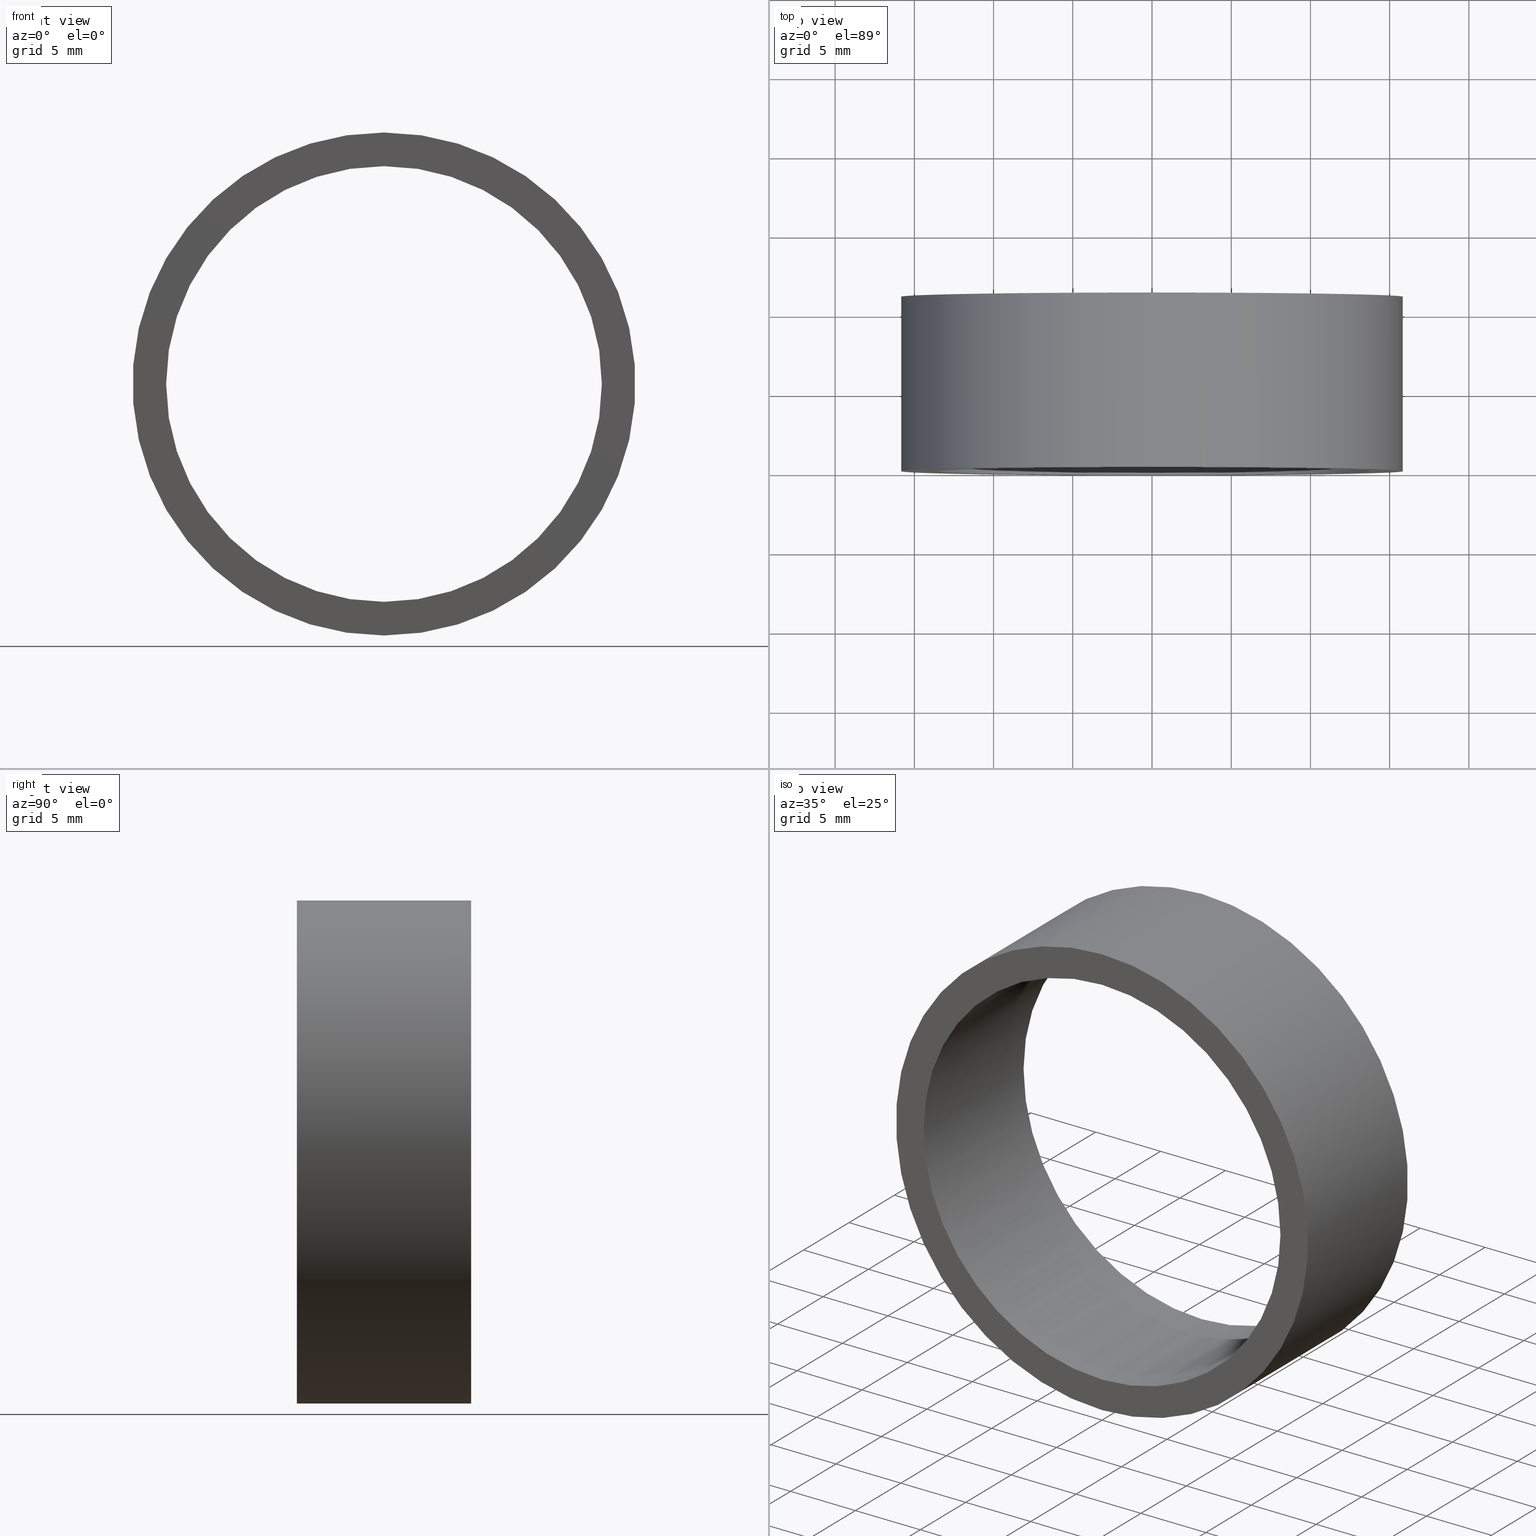
[diagram: canonical four-view strip — front | top / right | iso, engineering-drawing reading convention]
A machine part, canonical four-view strip (front | top / right | iso — engineering-drawing reading convention). The complete STEP part file that produces these views, byte-faithful:
ISO-10303-21;
HEADER;
FILE_DESCRIPTION (( 'STEP AP214' ),
    '1' );
FILE_NAME ('504067.STEP',
    '2019-09-05T08:47:19',
    ( 'user' ),
    ( '΢���й�' ),
    'SwSTEP 2.0',
    'SolidWorks 2016',
    '' );
FILE_SCHEMA (( 'AUTOMOTIVE_DESIGN' ));
ENDSEC;

DATA;
#1 = CARTESIAN_POINT ( 'NONE',  ( 1.944126793646423200E-015, 0.0000000000000000000, 15.87500000000000000 ) ) ;
#2 = FACE_BOUND ( 'NONE', #190, .T. ) ;
#3 = AXIS2_PLACEMENT_3D ( 'NONE', #68, #25, #188 ) ;
#4 = FILL_AREA_STYLE ('',( #54 ) ) ;
#5 = VERTEX_POINT ( 'NONE', #11 ) ;
#6 = AXIS2_PLACEMENT_3D ( 'NONE', #167, #24, #126 ) ;
#7 =( NAMED_UNIT ( * ) SI_UNIT ( $, .STERADIAN. ) SOLID_ANGLE_UNIT ( ) );
#8 = CARTESIAN_POINT ( 'NONE',  ( 1.683889348827610700E-015, 0.0000000000000000000, 13.75000000000000000 ) ) ;
#9 = CARTESIAN_POINT ( 'NONE',  ( 0.0000000000000000000, 11.00000000000000000, -13.75000000000000000 ) ) ;
#10 = SHAPE_DEFINITION_REPRESENTATION ( #166, #162 ) ;
#11 = CARTESIAN_POINT ( 'NONE',  ( 0.0000000000000000000, 0.0000000000000000000, -15.87500000000000000 ) ) ;
#12 = EDGE_CURVE ( 'NONE', #50, #133, #127, .T. ) ;
#13 = VERTEX_POINT ( 'NONE', #8 ) ;
#14 = LINE ( 'NONE', #232, #212 ) ;
#15 = SURFACE_SIDE_STYLE ('',( #67 ) ) ;
#16 = STYLED_ITEM ( 'NONE', ( #107 ), #45 ) ;
#17 = CIRCLE ( 'NONE', #218, 13.75000000000000000 ) ;
#18 = FACE_OUTER_BOUND ( 'NONE', #42, .T. ) ;
#19 = DIRECTION ( 'NONE',  ( -0.0000000000000000000, -1.000000000000000000, -0.0000000000000000000 ) ) ;
#20 = CARTESIAN_POINT ( 'NONE',  ( 0.0000000000000000000, 11.00000000000000000, -15.87500000000000000 ) ) ;
#21 = VECTOR ( 'NONE', #230, 1000.000000000000000 ) ;
#22 = ORIENTED_EDGE ( 'NONE', *, *, #164, .F. ) ;
#23 = EDGE_CURVE ( 'NONE', #221, #13, #109, .T. ) ;
#24 = DIRECTION ( 'NONE',  ( -0.0000000000000000000, -1.000000000000000000, -0.0000000000000000000 ) ) ;
#25 = DIRECTION ( 'NONE',  ( 0.0000000000000000000, 1.000000000000000000, 0.0000000000000000000 ) ) ;
#26 = CIRCLE ( 'NONE', #118, 13.75000000000000000 ) ;
#27 = DIRECTION ( 'NONE',  ( 0.0000000000000000000, 1.000000000000000000, 0.0000000000000000000 ) ) ;
#28 = LINE ( 'NONE', #183, #21 ) ;
#29 =( NAMED_UNIT ( * ) PLANE_ANGLE_UNIT ( ) SI_UNIT ( $, .RADIAN. ) );
#30 = ORIENTED_EDGE ( 'NONE', *, *, #23, .T. ) ;
#31 = AXIS2_PLACEMENT_3D ( 'NONE', #112, #243, #193 ) ;
#32 = CARTESIAN_POINT ( 'NONE',  ( 0.0000000000000000000, 11.00000000000000000, 0.0000000000000000000 ) ) ;
#33 = CIRCLE ( 'NONE', #120, 15.87500000000000000 ) ;
#34 = CARTESIAN_POINT ( 'NONE',  ( 1.683889348827610700E-015, 11.00000000000000000, 13.75000000000000000 ) ) ;
#35 = UNCERTAINTY_MEASURE_WITH_UNIT (LENGTH_MEASURE( 1.000000000000000100E-005 ), #115, 'distance_accuracy_value', 'NONE');
#36 = EDGE_CURVE ( 'NONE', #189, #221, #17, .T. ) ;
#37 = AXIS2_PLACEMENT_3D ( 'NONE', #156, #81, #113 ) ;
#38 = DIRECTION ( 'NONE',  ( 0.0000000000000000000, 0.0000000000000000000, 1.000000000000000000 ) ) ;
#39 = ADVANCED_FACE ( 'NONE', ( #105 ), #151, .F. ) ;
#40 = DIRECTION ( 'NONE',  ( 0.0000000000000000000, 1.000000000000000000, 0.0000000000000000000 ) ) ;
#41 = ADVANCED_FACE ( 'NONE', ( #73, #80 ), #122, .F. ) ;
#42 = EDGE_LOOP ( 'NONE', ( #240, #180, #228, #129 ) ) ;
#43 =( NAMED_UNIT ( * ) PLANE_ANGLE_UNIT ( ) SI_UNIT ( $, .RADIAN. ) );
#44 =( NAMED_UNIT ( * ) PLANE_ANGLE_UNIT ( ) SI_UNIT ( $, .RADIAN. ) );
#45 = ADVANCED_FACE ( 'NONE', ( #77 ), #46, .F. ) ;
#46 = CYLINDRICAL_SURFACE ( 'NONE', #6, 13.75000000000000000 ) ;
#47 = EDGE_CURVE ( 'NONE', #189, #203, #28, .T. ) ;
#48 = SURFACE_STYLE_USAGE ( .BOTH. , #198 ) ;
#49 = DIRECTION ( 'NONE',  ( 0.0000000000000000000, 0.0000000000000000000, -1.000000000000000000 ) ) ;
#50 = VERTEX_POINT ( 'NONE', #20 ) ;
#51 = FILL_AREA_STYLE ('',( #58 ) ) ;
#52 = DIRECTION ( 'NONE',  ( 0.0000000000000000000, 0.0000000000000000000, 1.000000000000000000 ) ) ;
#53 =( GEOMETRIC_REPRESENTATION_CONTEXT ( 3 ) GLOBAL_UNCERTAINTY_ASSIGNED_CONTEXT ( ( #196 ) ) GLOBAL_UNIT_ASSIGNED_CONTEXT ( ( #155, #96, #7 ) ) REPRESENTATION_CONTEXT ( 'NONE', 'WORKASPACE' ) );
#54 = FILL_AREA_STYLE_COLOUR ( '', #59 ) ;
#55 =( LENGTH_UNIT ( ) NAMED_UNIT ( * ) SI_UNIT ( .MILLI., .METRE. ) );
#56 = COLOUR_RGB ( '',1.000000000000000000, 1.000000000000000000, 1.000000000000000000 ) ;
#57 = DIRECTION ( 'NONE',  ( 0.0000000000000000000, 0.0000000000000000000, 1.000000000000000000 ) ) ;
#58 = FILL_AREA_STYLE_COLOUR ( '', #222 ) ;
#59 = COLOUR_RGB ( '',1.000000000000000000, 1.000000000000000000, 1.000000000000000000 ) ;
#60 = FACE_OUTER_BOUND ( 'NONE', #220, .T. ) ;
#61 = PRODUCT_DEFINITION_FORMATION_WITH_SPECIFIED_SOURCE ( '�κ�', '', #95, .NOT_KNOWN. ) ;
#62 = AXIS2_PLACEMENT_3D ( 'NONE', #235, #191, #237 ) ;
#63 = EDGE_LOOP ( 'NONE', ( #131, #22 ) ) ;
#64 = CIRCLE ( 'NONE', #207, 15.87500000000000000 ) ;
#65 = MECHANICAL_DESIGN_GEOMETRIC_PRESENTATION_REPRESENTATION (  '', ( #76 ), #197 ) ;
#66 = AXIS2_PLACEMENT_3D ( 'NONE', #236, #103, #88 ) ;
#67 = SURFACE_STYLE_FILL_AREA ( #214 ) ;
#68 = CARTESIAN_POINT ( 'NONE',  ( 0.0000000000000000000, 0.0000000000000000000, 0.0000000000000000000 ) ) ;
#69 = FACE_OUTER_BOUND ( 'NONE', #241, .T. ) ;
#70 = EDGE_CURVE ( 'NONE', #221, #189, #26, .T. ) ;
#71 = UNCERTAINTY_MEASURE_WITH_UNIT (LENGTH_MEASURE( 1.000000000000000100E-005 ), #213, 'distance_accuracy_value', 'NONE');
#72 = ORIENTED_EDGE ( 'NONE', *, *, #36, .T. ) ;
#73 = FACE_OUTER_BOUND ( 'NONE', #63, .T. ) ;
#74 = DIRECTION ( 'NONE',  ( 0.0000000000000000000, 0.0000000000000000000, 1.000000000000000000 ) ) ;
#75 =( NAMED_UNIT ( * ) SI_UNIT ( $, .STERADIAN. ) SOLID_ANGLE_UNIT ( ) );
#76 = STYLED_ITEM ( 'NONE', ( #94 ), #226 ) ;
#77 = FACE_OUTER_BOUND ( 'NONE', #161, .T. ) ;
#78 = DIRECTION ( 'NONE',  ( -0.0000000000000000000, -1.000000000000000000, -0.0000000000000000000 ) ) ;
#79 = PRESENTATION_LAYER_ASSIGNMENT (  '', '', ( #16 ) ) ;
#80 = FACE_BOUND ( 'NONE', #153, .T. ) ;
#81 = DIRECTION ( 'NONE',  ( 0.0000000000000000000, 1.000000000000000000, 0.0000000000000000000 ) ) ;
#82 = PRESENTATION_LAYER_ASSIGNMENT (  '', '', ( #178 ) ) ;
#83 = ORIENTED_EDGE ( 'NONE', *, *, #70, .T. ) ;
#84 = CARTESIAN_POINT ( 'NONE',  ( 1.944126793646423200E-015, 11.00000000000000000, 15.87500000000000000 ) ) ;
#85 = SURFACE_STYLE_FILL_AREA ( #202 ) ;
#86 = PRODUCT_DEFINITION ( 'δ֪', '', #61, #134 ) ;
#87 = PRODUCT_CONTEXT ( 'NONE', #136, 'mechanical' ) ;
#88 = DIRECTION ( 'NONE',  ( 0.0000000000000000000, -0.0000000000000000000, 1.000000000000000000 ) ) ;
#89 = AXIS2_PLACEMENT_3D ( 'NONE', #93, #163, #98 ) ;
#90 =( GEOMETRIC_REPRESENTATION_CONTEXT ( 3 ) GLOBAL_UNCERTAINTY_ASSIGNED_CONTEXT ( ( #152 ) ) GLOBAL_UNIT_ASSIGNED_CONTEXT ( ( #231, #29, #144 ) ) REPRESENTATION_CONTEXT ( 'NONE', 'WORKASPACE' ) );
#91 = PRESENTATION_STYLE_ASSIGNMENT (( #234 ) ) ;
#92 = MECHANICAL_DESIGN_GEOMETRIC_PRESENTATION_REPRESENTATION (  '', ( #128 ), #90 ) ;
#93 = CARTESIAN_POINT ( 'NONE',  ( 0.0000000000000000000, 0.0000000000000000000, 0.0000000000000000000 ) ) ;
#94 = PRESENTATION_STYLE_ASSIGNMENT (( #48 ) ) ;
#95 = PRODUCT ( '504067', '504067', '', ( #87 ) ) ;
#96 =( NAMED_UNIT ( * ) PLANE_ANGLE_UNIT ( ) SI_UNIT ( $, .RADIAN. ) );
#97 = AXIS2_PLACEMENT_3D ( 'NONE', #32, #150, #38 ) ;
#98 = DIRECTION ( 'NONE',  ( 1.000000000000000000, 0.0000000000000000000, 0.0000000000000000000 ) ) ;
#99 = DIRECTION ( 'NONE',  ( 0.0000000000000000000, 1.000000000000000000, 0.0000000000000000000 ) ) ;
#100 = MECHANICAL_DESIGN_GEOMETRIC_PRESENTATION_REPRESENTATION (  '', ( #178 ), #157 ) ;
#101 = EDGE_CURVE ( 'NONE', #203, #13, #169, .T. ) ;
#102 = PRESENTATION_STYLE_ASSIGNMENT (( #209 ) ) ;
#103 = DIRECTION ( 'NONE',  ( 0.0000000000000000000, 1.000000000000000000, 0.0000000000000000000 ) ) ;
#104 =( NAMED_UNIT ( * ) SI_UNIT ( $, .STERADIAN. ) SOLID_ANGLE_UNIT ( ) );
#105 = FACE_OUTER_BOUND ( 'NONE', #205, .T. ) ;
#106 = VECTOR ( 'NONE', #179, 1000.000000000000000 ) ;
#107 = PRESENTATION_STYLE_ASSIGNMENT (( #137 ) ) ;
#108 = CARTESIAN_POINT ( 'NONE',  ( 0.0000000000000000000, 11.00000000000000000, 0.0000000000000000000 ) ) ;
#109 = LINE ( 'NONE', #34, #106 ) ;
#110 = UNCERTAINTY_MEASURE_WITH_UNIT (LENGTH_MEASURE( 1.000000000000000100E-005 ), #55, 'distance_accuracy_value', 'NONE');
#111 = ADVANCED_FACE ( 'NONE', ( #60, #2 ), #154, .T. ) ;
#112 = CARTESIAN_POINT ( 'NONE',  ( 0.0000000000000000000, 11.00000000000000000, 0.0000000000000000000 ) ) ;
#113 = DIRECTION ( 'NONE',  ( 0.0000000000000000000, -0.0000000000000000000, 1.000000000000000000 ) ) ;
#114 = ORIENTED_EDGE ( 'NONE', *, *, #170, .T. ) ;
#115 =( LENGTH_UNIT ( ) NAMED_UNIT ( * ) SI_UNIT ( .MILLI., .METRE. ) );
#116 = ORIENTED_EDGE ( 'NONE', *, *, #242, .F. ) ;
#117 = ORIENTED_EDGE ( 'NONE', *, *, #36, .F. ) ;
#118 = AXIS2_PLACEMENT_3D ( 'NONE', #199, #99, #233 ) ;
#119 = DIRECTION ( 'NONE',  ( 0.0000000000000000000, 0.0000000000000000000, 1.000000000000000000 ) ) ;
#120 = AXIS2_PLACEMENT_3D ( 'NONE', #171, #40, #52 ) ;
#121 = FILL_AREA_STYLE_COLOUR ( '', #229 ) ;
#122 = PLANE ( 'NONE',  #37 ) ;
#123 = ORIENTED_EDGE ( 'NONE', *, *, #47, .T. ) ;
#124 = CIRCLE ( 'NONE', #192, 15.87500000000000000 ) ;
#125 = SURFACE_STYLE_FILL_AREA ( #4 ) ;
#126 = DIRECTION ( 'NONE',  ( 0.0000000000000000000, 0.0000000000000000000, -1.000000000000000000 ) ) ;
#127 = CIRCLE ( 'NONE', #97, 15.87500000000000000 ) ;
#128 = STYLED_ITEM ( 'NONE', ( #102 ), #39 ) ;
#129 = ORIENTED_EDGE ( 'NONE', *, *, #158, .T. ) ;
#130 = EDGE_CURVE ( 'NONE', #50, #5, #14, .T. ) ;
#131 = ORIENTED_EDGE ( 'NONE', *, *, #158, .F. ) ;
#132 = APPLICATION_PROTOCOL_DEFINITION ( 'draft international standard', 'automotive_design', 1998, #136 ) ;
#133 = VERTEX_POINT ( 'NONE', #140 ) ;
#134 = PRODUCT_DEFINITION_CONTEXT ( 'detailed design', #172, 'design' ) ;
#135 = MECHANICAL_DESIGN_GEOMETRIC_PRESENTATION_REPRESENTATION (  '', ( #16 ), #194 ) ;
#136 = APPLICATION_CONTEXT ( 'automotive_design' ) ;
#137 = SURFACE_STYLE_USAGE ( .BOTH. , #15 ) ;
#138 = ORIENTED_EDGE ( 'NONE', *, *, #242, .T. ) ;
#139 = ORIENTED_EDGE ( 'NONE', *, *, #164, .T. ) ;
#140 = CARTESIAN_POINT ( 'NONE',  ( 1.944126793646423200E-015, 11.00000000000000000, 15.87500000000000000 ) ) ;
#141 = DIRECTION ( 'NONE',  ( 0.0000000000000000000, 1.000000000000000000, 0.0000000000000000000 ) ) ;
#142 = CARTESIAN_POINT ( 'NONE',  ( 1.683889348827610700E-015, 11.00000000000000000, 13.75000000000000000 ) ) ;
#143 = ORIENTED_EDGE ( 'NONE', *, *, #130, .F. ) ;
#144 =( NAMED_UNIT ( * ) SI_UNIT ( $, .STERADIAN. ) SOLID_ANGLE_UNIT ( ) );
#145 = EDGE_CURVE ( 'NONE', #133, #186, #204, .T. ) ;
#146 = AXIS2_PLACEMENT_3D ( 'NONE', #165, #215, #49 ) ;
#147 = FILL_AREA_STYLE_COLOUR ( '', #56 ) ;
#148 = PRESENTATION_LAYER_ASSIGNMENT (  '', '', ( #76 ) ) ;
#149 = ADVANCED_FACE ( 'NONE', ( #69 ), #224, .T. ) ;
#150 = DIRECTION ( 'NONE',  ( 0.0000000000000000000, 1.000000000000000000, 0.0000000000000000000 ) ) ;
#151 = CYLINDRICAL_SURFACE ( 'NONE', #31, 13.75000000000000000 ) ;
#152 = UNCERTAINTY_MEASURE_WITH_UNIT (LENGTH_MEASURE( 1.000000000000000100E-005 ), #231, 'distance_accuracy_value', 'NONE');
#153 = EDGE_LOOP ( 'NONE', ( #177, #114 ) ) ;
#154 = PLANE ( 'NONE',  #66 ) ;
#155 =( LENGTH_UNIT ( ) NAMED_UNIT ( * ) SI_UNIT ( .MILLI., .METRE. ) );
#156 = CARTESIAN_POINT ( 'NONE',  ( 0.0000000000000000000, 0.0000000000000000000, 0.0000000000000000000 ) ) ;
#157 =( GEOMETRIC_REPRESENTATION_CONTEXT ( 3 ) GLOBAL_UNCERTAINTY_ASSIGNED_CONTEXT ( ( #71 ) ) GLOBAL_UNIT_ASSIGNED_CONTEXT ( ( #213, #43, #75 ) ) REPRESENTATION_CONTEXT ( 'NONE', 'WORKASPACE' ) );
#158 = EDGE_CURVE ( 'NONE', #5, #186, #33, .T. ) ;
#159 =( NAMED_UNIT ( * ) PLANE_ANGLE_UNIT ( ) SI_UNIT ( $, .RADIAN. ) );
#160 =( NAMED_UNIT ( * ) SI_UNIT ( $, .STERADIAN. ) SOLID_ANGLE_UNIT ( ) );
#161 = EDGE_LOOP ( 'NONE', ( #72, #30, #182, #244 ) ) ;
#162 = ADVANCED_BREP_SHAPE_REPRESENTATION ( '504067', ( #226, #89 ), #53 ) ;
#163 = DIRECTION ( 'NONE',  ( 0.0000000000000000000, 0.0000000000000000000, 1.000000000000000000 ) ) ;
#164 = EDGE_CURVE ( 'NONE', #186, #5, #124, .T. ) ;
#165 = CARTESIAN_POINT ( 'NONE',  ( 0.0000000000000000000, 11.00000000000000000, 0.0000000000000000000 ) ) ;
#166 = PRODUCT_DEFINITION_SHAPE ( 'NONE', 'NONE',  #86 ) ;
#167 = CARTESIAN_POINT ( 'NONE',  ( 0.0000000000000000000, 11.00000000000000000, 0.0000000000000000000 ) ) ;
#168 = SURFACE_SIDE_STYLE ('',( #125 ) ) ;
#169 = CIRCLE ( 'NONE', #210, 13.75000000000000000 ) ;
#170 = EDGE_CURVE ( 'NONE', #13, #203, #181, .T. ) ;
#171 = CARTESIAN_POINT ( 'NONE',  ( 0.0000000000000000000, 0.0000000000000000000, 0.0000000000000000000 ) ) ;
#172 = APPLICATION_CONTEXT ( 'automotive_design' ) ;
#173 = ADVANCED_FACE ( 'NONE', ( #18 ), #223, .T. ) ;
#174 = CARTESIAN_POINT ( 'NONE',  ( 0.0000000000000000000, 0.0000000000000000000, 0.0000000000000000000 ) ) ;
#175 = DIRECTION ( 'NONE',  ( 0.0000000000000000000, 1.000000000000000000, 0.0000000000000000000 ) ) ;
#176 = CLOSED_SHELL ( 'NONE', ( #45, #149, #111, #41, #173, #39 ) ) ;
#177 = ORIENTED_EDGE ( 'NONE', *, *, #101, .T. ) ;
#178 = STYLED_ITEM ( 'NONE', ( #91 ), #162 ) ;
#179 = DIRECTION ( 'NONE',  ( -0.0000000000000000000, -1.000000000000000000, -0.0000000000000000000 ) ) ;
#180 = ORIENTED_EDGE ( 'NONE', *, *, #12, .F. ) ;
#181 = CIRCLE ( 'NONE', #3, 13.75000000000000000 ) ;
#182 = ORIENTED_EDGE ( 'NONE', *, *, #101, .F. ) ;
#183 = CARTESIAN_POINT ( 'NONE',  ( 0.0000000000000000000, 11.00000000000000000, -13.75000000000000000 ) ) ;
#184 = APPLICATION_PROTOCOL_DEFINITION ( 'draft international standard', 'automotive_design', 1998, #172 ) ;
#185 = CARTESIAN_POINT ( 'NONE',  ( 0.0000000000000000000, 0.0000000000000000000, 0.0000000000000000000 ) ) ;
#186 = VERTEX_POINT ( 'NONE', #1 ) ;
#187 = SURFACE_SIDE_STYLE ('',( #239 ) ) ;
#188 = DIRECTION ( 'NONE',  ( 0.0000000000000000000, 0.0000000000000000000, 1.000000000000000000 ) ) ;
#189 = VERTEX_POINT ( 'NONE', #9 ) ;
#190 = EDGE_LOOP ( 'NONE', ( #117, #195 ) ) ;
#191 = DIRECTION ( 'NONE',  ( -0.0000000000000000000, -1.000000000000000000, -0.0000000000000000000 ) ) ;
#192 = AXIS2_PLACEMENT_3D ( 'NONE', #185, #201, #74 ) ;
#193 = DIRECTION ( 'NONE',  ( 0.0000000000000000000, 0.0000000000000000000, -1.000000000000000000 ) ) ;
#194 =( GEOMETRIC_REPRESENTATION_CONTEXT ( 3 ) GLOBAL_UNCERTAINTY_ASSIGNED_CONTEXT ( ( #35 ) ) GLOBAL_UNIT_ASSIGNED_CONTEXT ( ( #115, #159, #104 ) ) REPRESENTATION_CONTEXT ( 'NONE', 'WORKASPACE' ) );
#195 = ORIENTED_EDGE ( 'NONE', *, *, #70, .F. ) ;
#196 = UNCERTAINTY_MEASURE_WITH_UNIT (LENGTH_MEASURE( 1.000000000000000100E-005 ), #155, 'distance_accuracy_value', 'NONE');
#197 =( GEOMETRIC_REPRESENTATION_CONTEXT ( 3 ) GLOBAL_UNCERTAINTY_ASSIGNED_CONTEXT ( ( #110 ) ) GLOBAL_UNIT_ASSIGNED_CONTEXT ( ( #55, #44, #160 ) ) REPRESENTATION_CONTEXT ( 'NONE', 'WORKASPACE' ) );
#198 = SURFACE_SIDE_STYLE ('',( #85 ) ) ;
#199 = CARTESIAN_POINT ( 'NONE',  ( 0.0000000000000000000, 11.00000000000000000, 0.0000000000000000000 ) ) ;
#200 = ORIENTED_EDGE ( 'NONE', *, *, #170, .F. ) ;
#201 = DIRECTION ( 'NONE',  ( 0.0000000000000000000, 1.000000000000000000, 0.0000000000000000000 ) ) ;
#202 = FILL_AREA_STYLE ('',( #121 ) ) ;
#203 = VERTEX_POINT ( 'NONE', #208 ) ;
#204 = LINE ( 'NONE', #84, #217 ) ;
#205 = EDGE_LOOP ( 'NONE', ( #211, #83, #123, #200 ) ) ;
#206 = ORIENTED_EDGE ( 'NONE', *, *, #145, .T. ) ;
#207 = AXIS2_PLACEMENT_3D ( 'NONE', #108, #175, #119 ) ;
#208 = CARTESIAN_POINT ( 'NONE',  ( 0.0000000000000000000, 0.0000000000000000000, -13.75000000000000000 ) ) ;
#209 = SURFACE_STYLE_USAGE ( .BOTH. , #168 ) ;
#210 = AXIS2_PLACEMENT_3D ( 'NONE', #174, #141, #57 ) ;
#211 = ORIENTED_EDGE ( 'NONE', *, *, #23, .F. ) ;
#212 = VECTOR ( 'NONE', #19, 1000.000000000000000 ) ;
#213 =( LENGTH_UNIT ( ) NAMED_UNIT ( * ) SI_UNIT ( .MILLI., .METRE. ) );
#214 = FILL_AREA_STYLE ('',( #147 ) ) ;
#215 = DIRECTION ( 'NONE',  ( -0.0000000000000000000, -1.000000000000000000, -0.0000000000000000000 ) ) ;
#216 = PRESENTATION_LAYER_ASSIGNMENT (  '', '', ( #128 ) ) ;
#217 = VECTOR ( 'NONE', #78, 1000.000000000000000 ) ;
#218 = AXIS2_PLACEMENT_3D ( 'NONE', #219, #27, #227 ) ;
#219 = CARTESIAN_POINT ( 'NONE',  ( 0.0000000000000000000, 11.00000000000000000, 0.0000000000000000000 ) ) ;
#220 = EDGE_LOOP ( 'NONE', ( #225, #138 ) ) ;
#221 = VERTEX_POINT ( 'NONE', #142 ) ;
#222 = COLOUR_RGB ( '',1.000000000000000000, 1.000000000000000000, 1.000000000000000000 ) ;
#223 = CYLINDRICAL_SURFACE ( 'NONE', #62, 15.87500000000000000 ) ;
#224 = CYLINDRICAL_SURFACE ( 'NONE', #146, 15.87500000000000000 ) ;
#225 = ORIENTED_EDGE ( 'NONE', *, *, #12, .T. ) ;
#226 = MANIFOLD_SOLID_BREP ( '͹̨-����1', #176 ) ;
#227 = DIRECTION ( 'NONE',  ( 0.0000000000000000000, 0.0000000000000000000, 1.000000000000000000 ) ) ;
#228 = ORIENTED_EDGE ( 'NONE', *, *, #130, .T. ) ;
#229 = COLOUR_RGB ( '',1.000000000000000000, 1.000000000000000000, 1.000000000000000000 ) ;
#230 = DIRECTION ( 'NONE',  ( -0.0000000000000000000, -1.000000000000000000, -0.0000000000000000000 ) ) ;
#231 =( LENGTH_UNIT ( ) NAMED_UNIT ( * ) SI_UNIT ( .MILLI., .METRE. ) );
#232 = CARTESIAN_POINT ( 'NONE',  ( 0.0000000000000000000, 11.00000000000000000, -15.87500000000000000 ) ) ;
#233 = DIRECTION ( 'NONE',  ( 0.0000000000000000000, 0.0000000000000000000, 1.000000000000000000 ) ) ;
#234 = SURFACE_STYLE_USAGE ( .BOTH. , #187 ) ;
#235 = CARTESIAN_POINT ( 'NONE',  ( 0.0000000000000000000, 11.00000000000000000, 0.0000000000000000000 ) ) ;
#236 = CARTESIAN_POINT ( 'NONE',  ( 0.0000000000000000000, 11.00000000000000000, 0.0000000000000000000 ) ) ;
#237 = DIRECTION ( 'NONE',  ( 0.0000000000000000000, 0.0000000000000000000, -1.000000000000000000 ) ) ;
#238 = PRODUCT_RELATED_PRODUCT_CATEGORY ( 'part', '', ( #95 ) ) ;
#239 = SURFACE_STYLE_FILL_AREA ( #51 ) ;
#240 = ORIENTED_EDGE ( 'NONE', *, *, #145, .F. ) ;
#241 = EDGE_LOOP ( 'NONE', ( #116, #206, #139, #143 ) ) ;
#242 = EDGE_CURVE ( 'NONE', #133, #50, #64, .T. ) ;
#243 = DIRECTION ( 'NONE',  ( -0.0000000000000000000, -1.000000000000000000, -0.0000000000000000000 ) ) ;
#244 = ORIENTED_EDGE ( 'NONE', *, *, #47, .F. ) ;
ENDSEC;
END-ISO-10303-21;
